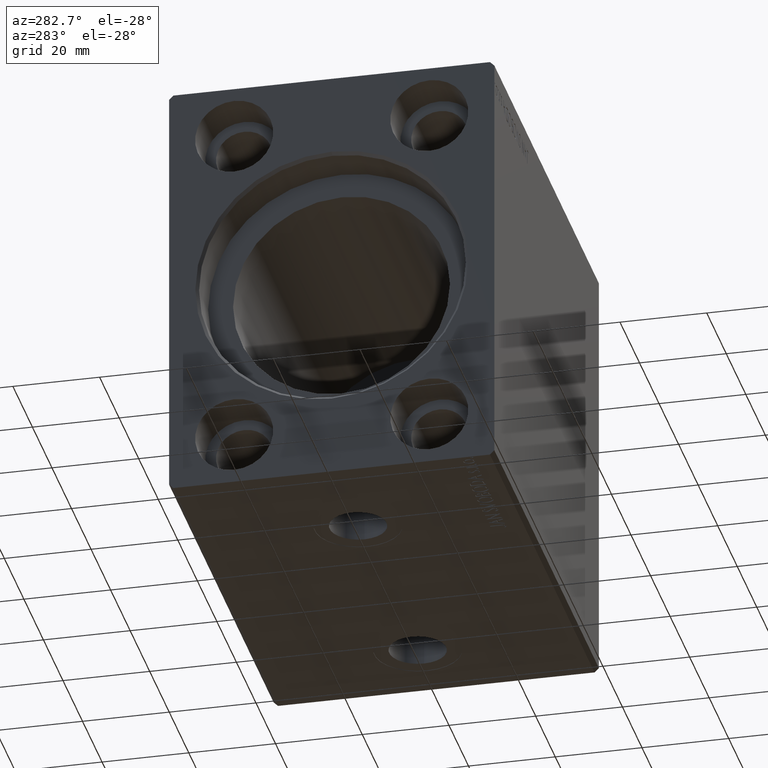
[diagram: clean part render]
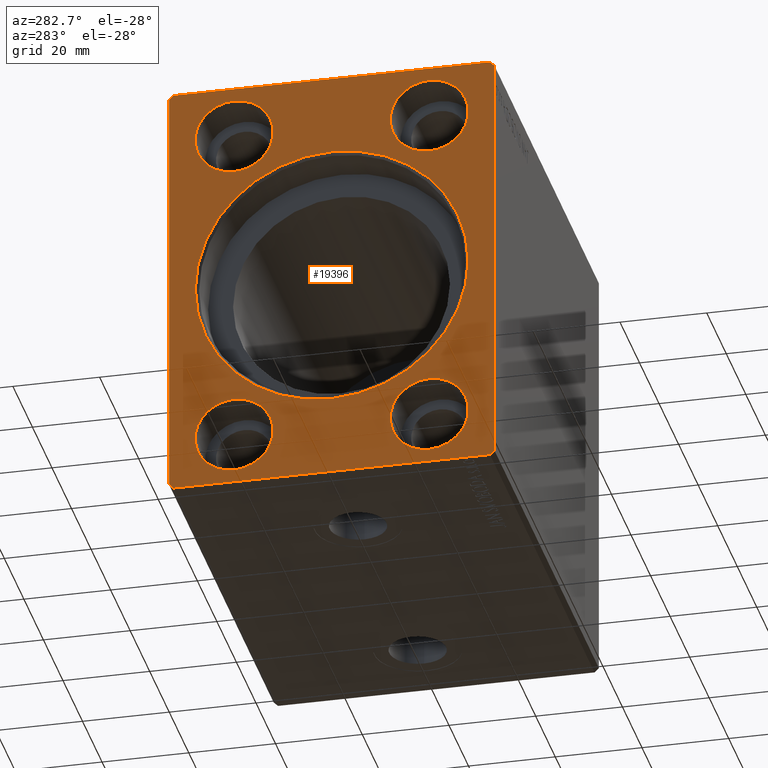
[diagram: same view with one face highlighted and labeled with its STEP entity id]
A machine part, auxiliary view. The second image highlights one B-rep face of the part: STEP entity #19396.
In plain terms, the highlighted planar face has unit normal (1, 0, 0).
Its self-contained STEP definition (entity closure, byte-faithful):
#631 = ORIENTED_EDGE ( 'NONE', *, *, #14396, .F. ) ;
#643 = AXIS2_PLACEMENT_3D ( 'NONE', #12199, #2526, #38610 ) ;
#922 = CARTESIAN_POINT ( 'NONE',  ( 0.000000000000000000, 22.50000000000000000, -28.99999999999999645 ) ) ;
#991 = VERTEX_POINT ( 'NONE', #34544 ) ;
#1045 = CARTESIAN_POINT ( 'NONE',  ( 0.000000000000000000, 37.50000000000000711, -49.00000000000000000 ) ) ;
#1311 = EDGE_CURVE ( 'NONE', #34022, #25109, #25200, .T. ) ;
#1481 = EDGE_LOOP ( 'NONE', ( #15275, #39500 ) ) ;
#2128 = VECTOR ( 'NONE', #17303, 1000.000000000000114 ) ;
#2526 = DIRECTION ( 'NONE',  ( -1.000000000000000000, 0.000000000000000000, 0.000000000000000000 ) ) ;
#2554 = CARTESIAN_POINT ( 'NONE',  ( 0.000000000000000000, -22.50000000000000000, -38.00000000000000000 ) ) ;
#3000 = VERTEX_POINT ( 'NONE', #17539 ) ;
#3064 = CARTESIAN_POINT ( 'NONE',  ( 0.000000000000000000, 37.50000000000000711, 49.00000000000000000 ) ) ;
#3643 = EDGE_CURVE ( 'NONE', #36556, #31269, #9672, .T. ) ;
#3871 = FACE_BOUND ( 'NONE', #26812, .T. ) ;
#3946 = VERTEX_POINT ( 'NONE', #31343 ) ;
#4092 = CARTESIAN_POINT ( 'NONE',  ( 0.000000000000000000, 0.000000000000000000, 31.45000000000002061 ) ) ;
#4206 = CARTESIAN_POINT ( 'NONE',  ( 0.000000000000000000, 37.50000000000000711, 49.00000000000000000 ) ) ;
#4255 = VERTEX_POINT ( 'NONE', #3064 ) ;
#4263 = DIRECTION ( 'NONE',  ( 0.000000000000000000, 0.000000000000000000, -1.000000000000000000 ) ) ;
#4464 = AXIS2_PLACEMENT_3D ( 'NONE', #23088, #16638, #36209 ) ;
#4580 = DIRECTION ( 'NONE',  ( -1.000000000000000000, 0.000000000000000000, 0.000000000000000000 ) ) ;
#4684 = VECTOR ( 'NONE', #10104, 1000.000000000000114 ) ;
#5159 = DIRECTION ( 'NONE',  ( 1.000000000000000000, -0.000000000000000000, -0.000000000000000000 ) ) ;
#5339 = VERTEX_POINT ( 'NONE', #9907 ) ;
#5383 = DIRECTION ( 'NONE',  ( 0.000000000000000000, 0.000000000000000000, -1.000000000000000000 ) ) ;
#6065 = VERTEX_POINT ( 'NONE', #29456 ) ;
#6321 = DIRECTION ( 'NONE',  ( 0.000000000000000000, 0.000000000000000000, 1.000000000000000000 ) ) ;
#6473 = CARTESIAN_POINT ( 'NONE',  ( 0.000000000000000000, 22.50000000000000000, 28.99999999999999645 ) ) ;
#6823 = ORIENTED_EDGE ( 'NONE', *, *, #35300, .F. ) ;
#7222 = LINE ( 'NONE', #4206, #2128 ) ;
#7286 = CARTESIAN_POINT ( 'NONE',  ( 0.000000000000000000, 0.000000000000000000, 0.000000000000000000 ) ) ;
#7590 = CARTESIAN_POINT ( 'NONE',  ( 0.000000000000000000, 3.851514183318427194E-15, -31.45000000000002061 ) ) ;
#7994 = EDGE_LOOP ( 'NONE', ( #14161, #23073 ) ) ;
#8795 = DIRECTION ( 'NONE',  ( 0.000000000000000000, -1.000000000000000000, -1.901066822988281457E-16 ) ) ;
#9147 = VERTEX_POINT ( 'NONE', #42244 ) ;
#9362 = AXIS2_PLACEMENT_3D ( 'NONE', #21824, #19433, #34942 ) ;
#9565 = DIRECTION ( 'NONE',  ( -1.000000000000000000, 0.000000000000000000, 0.000000000000000000 ) ) ;
#9672 = LINE ( 'NONE', #25992, #35838 ) ;
#9907 = CARTESIAN_POINT ( 'NONE',  ( 0.000000000000000000, 36.50000000000000711, 50.00000000000000000 ) ) ;
#10104 = DIRECTION ( 'NONE',  ( 0.000000000000000000, 0.7071067811865500152, -0.7071067811865451302 ) ) ;
#10322 = DIRECTION ( 'NONE',  ( 1.000000000000000000, 0.000000000000000000, 0.000000000000000000 ) ) ;
#10486 = CARTESIAN_POINT ( 'NONE',  ( 0.000000000000000000, 36.50000000000000711, -50.00000000000000000 ) ) ;
#10795 = ORIENTED_EDGE ( 'NONE', *, *, #14156, .F. ) ;
#10960 = CARTESIAN_POINT ( 'NONE',  ( 0.000000000000000000, -37.50000000000001421, -49.00000000000000000 ) ) ;
#11094 = VERTEX_POINT ( 'NONE', #6473 ) ;
#11734 = AXIS2_PLACEMENT_3D ( 'NONE', #2554, #5159, #31565 ) ;
#11833 = DIRECTION ( 'NONE',  ( 1.000000000000000000, -0.000000000000000000, -0.000000000000000000 ) ) ;
#12032 = CARTESIAN_POINT ( 'NONE',  ( 0.000000000000000000, -37.50000000000001421, 48.99999999999998579 ) ) ;
#12199 = CARTESIAN_POINT ( 'NONE',  ( 0.000000000000000000, 22.50000000000000000, -38.00000000000000000 ) ) ;
#13482 = LINE ( 'NONE', #10486, #31476 ) ;
#13824 = ORIENTED_EDGE ( 'NONE', *, *, #27785, .F. ) ;
#14156 = EDGE_CURVE ( 'NONE', #25109, #34022, #17522, .T. ) ;
#14159 = CARTESIAN_POINT ( 'NONE',  ( 0.000000000000000000, -22.50000000000000000, 28.99999999999999645 ) ) ;
#14161 = ORIENTED_EDGE ( 'NONE', *, *, #19097, .T. ) ;
#14396 = EDGE_CURVE ( 'NONE', #9147, #26312, #35302, .T. ) ;
#14919 = CARTESIAN_POINT ( 'NONE',  ( 0.000000000000000000, -37.50000000000001421, 48.99999999999998579 ) ) ;
#15045 = EDGE_CURVE ( 'NONE', #5339, #36556, #41026, .T. ) ;
#15062 = DIRECTION ( 'NONE',  ( 0.000000000000000000, 0.000000000000000000, 1.000000000000000000 ) ) ;
#15275 = ORIENTED_EDGE ( 'NONE', *, *, #41933, .F. ) ;
#15771 = DIRECTION ( 'NONE',  ( -1.000000000000000000, 0.000000000000000000, 0.000000000000000000 ) ) ;
#15884 = ORIENTED_EDGE ( 'NONE', *, *, #26762, .F. ) ;
#16427 = AXIS2_PLACEMENT_3D ( 'NONE', #34609, #11833, #18275 ) ;
#16540 = FACE_OUTER_BOUND ( 'NONE', #42041, .T. ) ;
#16638 = DIRECTION ( 'NONE',  ( 1.000000000000000000, 0.000000000000000000, 0.000000000000000000 ) ) ;
#16708 = EDGE_CURVE ( 'NONE', #31269, #3946, #34393, .T. ) ;
#17303 = DIRECTION ( 'NONE',  ( 0.000000000000000000, -0.7071067811865474617, 0.7071067811865474617 ) ) ;
#17356 = ORIENTED_EDGE ( 'NONE', *, *, #34118, .T. ) ;
#17522 = CIRCLE ( 'NONE', #41532, 9.000000000000001776 ) ;
#17539 = CARTESIAN_POINT ( 'NONE',  ( 0.000000000000000000, -22.50000000000000000, -47.00000000000000000 ) ) ;
#17551 = VECTOR ( 'NONE', #8795, 1000.000000000000000 ) ;
#17659 = EDGE_CURVE ( 'NONE', #34783, #19931, #34805, .T. ) ;
#17897 = DIRECTION ( 'NONE',  ( 0.000000000000000000, 0.000000000000000000, 1.000000000000000000 ) ) ;
#18275 = DIRECTION ( 'NONE',  ( 0.000000000000000000, 0.000000000000000000, -1.000000000000000000 ) ) ;
#18461 = CARTESIAN_POINT ( 'NONE',  ( 0.000000000000000000, 36.50000000000000711, 50.00000000000000000 ) ) ;
#18897 = VECTOR ( 'NONE', #21778, 1000.000000000000000 ) ;
#18970 = CARTESIAN_POINT ( 'NONE',  ( 0.000000000000000000, 22.50000000000000000, 38.00000000000000000 ) ) ;
#19097 = EDGE_CURVE ( 'NONE', #21977, #11094, #27950, .T. ) ;
#19339 = FACE_BOUND ( 'NONE', #19951, .T. ) ;
#19391 = DIRECTION ( 'NONE',  ( 1.000000000000000000, -0.000000000000000000, -0.000000000000000000 ) ) ;
#19396 = ADVANCED_FACE ( 'NONE', ( #19339, #39321, #3871, #16540, #26848, #24211 ), #26636, .F. ) ;
#19411 = CARTESIAN_POINT ( 'NONE',  ( 0.000000000000000000, -22.50000000000000000, 38.00000000000000000 ) ) ;
#19433 = DIRECTION ( 'NONE',  ( 1.000000000000000000, -0.000000000000000000, -0.000000000000000000 ) ) ;
#19528 = ORIENTED_EDGE ( 'NONE', *, *, #15045, .F. ) ;
#19931 = VERTEX_POINT ( 'NONE', #7590 ) ;
#19946 = ORIENTED_EDGE ( 'NONE', *, *, #1311, .F. ) ;
#19951 = EDGE_LOOP ( 'NONE', ( #19946, #10795 ) ) ;
#20403 = AXIS2_PLACEMENT_3D ( 'NONE', #22771, #10322, #29849 ) ;
#20587 = ORIENTED_EDGE ( 'NONE', *, *, #29909, .T. ) ;
#20981 = EDGE_LOOP ( 'NONE', ( #20587, #17356 ) ) ;
#21206 = EDGE_CURVE ( 'NONE', #11094, #21977, #27885, .T. ) ;
#21304 = CARTESIAN_POINT ( 'NONE',  ( 0.000000000000000000, 37.50000000000000711, -49.00000000000000000 ) ) ;
#21778 = DIRECTION ( 'NONE',  ( 0.000000000000000000, 1.000000000000000000, 0.000000000000000000 ) ) ;
#21824 = CARTESIAN_POINT ( 'NONE',  ( 0.000000000000000000, 22.50000000000000000, 38.00000000000000000 ) ) ;
#21977 = VERTEX_POINT ( 'NONE', #38162 ) ;
#22599 = CIRCLE ( 'NONE', #16427, 9.000000000000001776 ) ;
#22657 = DIRECTION ( 'NONE',  ( 0.000000000000000000, 0.000000000000000000, 1.000000000000000000 ) ) ;
#22745 = ORIENTED_EDGE ( 'NONE', *, *, #39091, .T. ) ;
#22771 = CARTESIAN_POINT ( 'NONE',  ( 0.000000000000000000, 0.000000000000000000, 0.000000000000000000 ) ) ;
#23073 = ORIENTED_EDGE ( 'NONE', *, *, #21206, .T. ) ;
#23088 = CARTESIAN_POINT ( 'NONE',  ( 0.000000000000000000, 0.000000000000000000, 0.000000000000000000 ) ) ;
#23576 = DIRECTION ( 'NONE',  ( 0.000000000000000000, 0.7071067811865474617, 0.7071067811865474617 ) ) ;
#24130 = VERTEX_POINT ( 'NONE', #1045 ) ;
#24211 = FACE_BOUND ( 'NONE', #7994, .T. ) ;
#24699 = CARTESIAN_POINT ( 'NONE',  ( 0.000000000000000000, -22.50000000000000000, 47.00000000000000000 ) ) ;
#25109 = VERTEX_POINT ( 'NONE', #14159 ) ;
#25158 = AXIS2_PLACEMENT_3D ( 'NONE', #7286, #29237, #4263 ) ;
#25200 = CIRCLE ( 'NONE', #36177, 9.000000000000001776 ) ;
#25595 = EDGE_CURVE ( 'NONE', #24130, #4255, #40644, .T. ) ;
#25992 = CARTESIAN_POINT ( 'NONE',  ( 0.000000000000000000, -36.50000000000001421, 49.99999999999998579 ) ) ;
#26254 = CARTESIAN_POINT ( 'NONE',  ( 0.000000000000000000, 36.50000000000000711, -50.00000000000000000 ) ) ;
#26312 = VERTEX_POINT ( 'NONE', #26254 ) ;
#26636 = PLANE ( 'NONE',  #20403 ) ;
#26711 = CIRCLE ( 'NONE', #643, 9.000000000000001776 ) ;
#26762 = EDGE_CURVE ( 'NONE', #3946, #9147, #39958, .T. ) ;
#26812 = EDGE_LOOP ( 'NONE', ( #41691, #22745 ) ) ;
#26848 = FACE_BOUND ( 'NONE', #20981, .T. ) ;
#27785 = EDGE_CURVE ( 'NONE', #26312, #24130, #13482, .T. ) ;
#27885 = CIRCLE ( 'NONE', #9362, 9.000000000000001776 ) ;
#27950 = CIRCLE ( 'NONE', #38260, 9.000000000000001776 ) ;
#29237 = DIRECTION ( 'NONE',  ( 1.000000000000000000, 0.000000000000000000, 0.000000000000000000 ) ) ;
#29307 = VERTEX_POINT ( 'NONE', #922 ) ;
#29456 = CARTESIAN_POINT ( 'NONE',  ( 0.000000000000000000, -22.50000000000000000, -28.99999999999999645 ) ) ;
#29849 = DIRECTION ( 'NONE',  ( 0.000000000000000000, 0.000000000000000000, -1.000000000000000000 ) ) ;
#29909 = EDGE_CURVE ( 'NONE', #6065, #3000, #22599, .T. ) ;
#30202 = EDGE_CURVE ( 'NONE', #991, #29307, #26711, .T. ) ;
#31269 = VERTEX_POINT ( 'NONE', #14919 ) ;
#31294 = AXIS2_PLACEMENT_3D ( 'NONE', #40879, #4580, #17897 ) ;
#31343 = CARTESIAN_POINT ( 'NONE',  ( 0.000000000000000000, -37.50000000000001421, -49.00000000000000000 ) ) ;
#31476 = VECTOR ( 'NONE', #23576, 1000.000000000000114 ) ;
#31565 = DIRECTION ( 'NONE',  ( 0.000000000000000000, 0.000000000000000000, -1.000000000000000000 ) ) ;
#32286 = DIRECTION ( 'NONE',  ( 0.000000000000000000, 0.000000000000000000, -1.000000000000000000 ) ) ;
#34022 = VERTEX_POINT ( 'NONE', #24699 ) ;
#34118 = EDGE_CURVE ( 'NONE', #3000, #6065, #35062, .T. ) ;
#34393 = LINE ( 'NONE', #12032, #36826 ) ;
#34544 = CARTESIAN_POINT ( 'NONE',  ( 0.000000000000000000, 22.50000000000000000, -47.00000000000000000 ) ) ;
#34609 = CARTESIAN_POINT ( 'NONE',  ( 0.000000000000000000, -22.50000000000000000, -38.00000000000000000 ) ) ;
#34660 = CIRCLE ( 'NONE', #4464, 31.45000000000002061 ) ;
#34783 = VERTEX_POINT ( 'NONE', #4092 ) ;
#34805 = CIRCLE ( 'NONE', #25158, 31.45000000000002061 ) ;
#34942 = DIRECTION ( 'NONE',  ( 0.000000000000000000, 0.000000000000000000, -1.000000000000000000 ) ) ;
#35062 = CIRCLE ( 'NONE', #11734, 9.000000000000001776 ) ;
#35300 = EDGE_CURVE ( 'NONE', #4255, #5339, #7222, .T. ) ;
#35302 = LINE ( 'NONE', #38111, #18897 ) ;
#35838 = VECTOR ( 'NONE', #35886, 1000.000000000000114 ) ;
#35886 = DIRECTION ( 'NONE',  ( 0.000000000000000000, -0.7071067811865474617, -0.7071067811865474617 ) ) ;
#36177 = AXIS2_PLACEMENT_3D ( 'NONE', #19411, #15771, #6321 ) ;
#36209 = DIRECTION ( 'NONE',  ( 0.000000000000000000, 0.000000000000000000, -1.000000000000000000 ) ) ;
#36361 = ORIENTED_EDGE ( 'NONE', *, *, #25595, .F. ) ;
#36556 = VERTEX_POINT ( 'NONE', #41655 ) ;
#36826 = VECTOR ( 'NONE', #5383, 1000.000000000000000 ) ;
#37036 = ORIENTED_EDGE ( 'NONE', *, *, #3643, .F. ) ;
#38111 = CARTESIAN_POINT ( 'NONE',  ( 0.000000000000000000, -36.50000000000000711, -50.00000000000000000 ) ) ;
#38144 = CIRCLE ( 'NONE', #31294, 9.000000000000001776 ) ;
#38162 = CARTESIAN_POINT ( 'NONE',  ( 0.000000000000000000, 22.50000000000000000, 47.00000000000000000 ) ) ;
#38260 = AXIS2_PLACEMENT_3D ( 'NONE', #18970, #19391, #32286 ) ;
#38610 = DIRECTION ( 'NONE',  ( 0.000000000000000000, 0.000000000000000000, 1.000000000000000000 ) ) ;
#39091 = EDGE_CURVE ( 'NONE', #19931, #34783, #34660, .T. ) ;
#39321 = FACE_BOUND ( 'NONE', #1481, .T. ) ;
#39500 = ORIENTED_EDGE ( 'NONE', *, *, #30202, .F. ) ;
#39958 = LINE ( 'NONE', #10960, #4684 ) ;
#40644 = LINE ( 'NONE', #21304, #42404 ) ;
#40879 = CARTESIAN_POINT ( 'NONE',  ( 0.000000000000000000, 22.50000000000000000, -38.00000000000000000 ) ) ;
#41026 = LINE ( 'NONE', #18461, #17551 ) ;
#41532 = AXIS2_PLACEMENT_3D ( 'NONE', #42205, #9565, #22657 ) ;
#41655 = CARTESIAN_POINT ( 'NONE',  ( 0.000000000000000000, -36.50000000000001421, 49.99999999999998579 ) ) ;
#41691 = ORIENTED_EDGE ( 'NONE', *, *, #17659, .T. ) ;
#41926 = ORIENTED_EDGE ( 'NONE', *, *, #16708, .F. ) ;
#41933 = EDGE_CURVE ( 'NONE', #29307, #991, #38144, .T. ) ;
#42041 = EDGE_LOOP ( 'NONE', ( #6823, #36361, #13824, #631, #15884, #41926, #37036, #19528 ) ) ;
#42205 = CARTESIAN_POINT ( 'NONE',  ( 0.000000000000000000, -22.50000000000000000, 38.00000000000000000 ) ) ;
#42244 = CARTESIAN_POINT ( 'NONE',  ( 0.000000000000000000, -36.50000000000000711, -50.00000000000000000 ) ) ;
#42404 = VECTOR ( 'NONE', #15062, 1000.000000000000000 ) ;